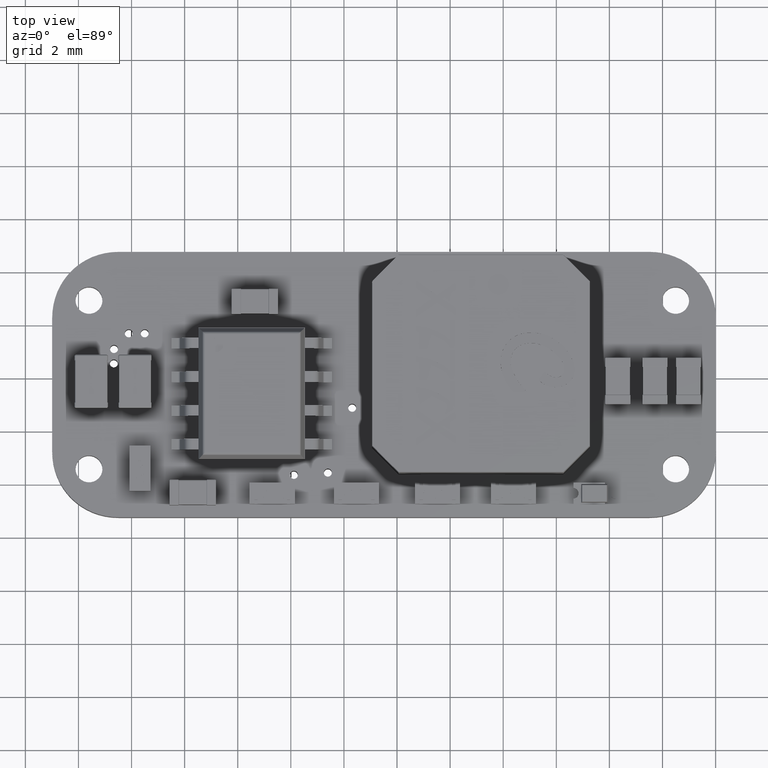
[diagram: clean part render]
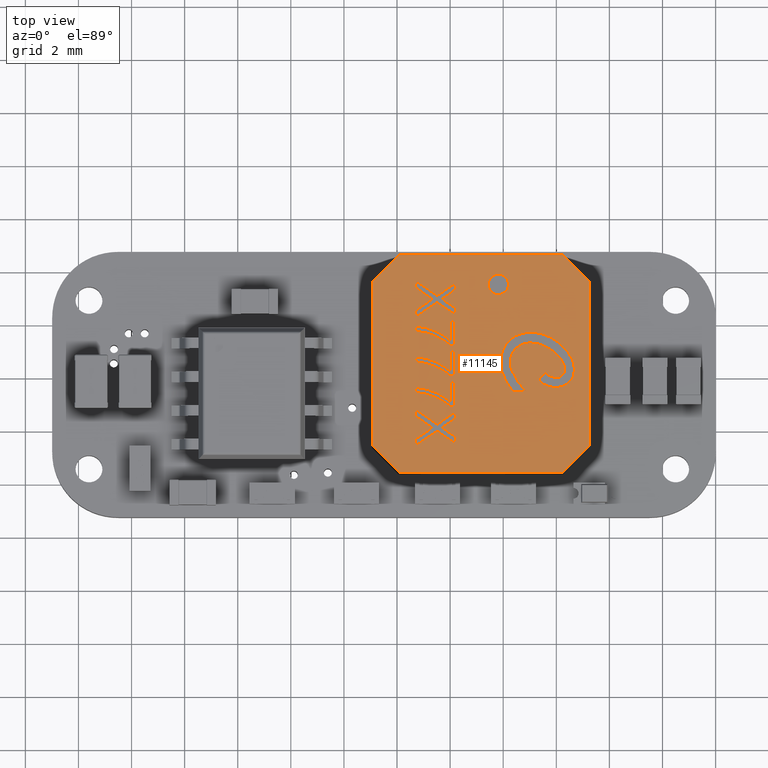
[diagram: same view with one face highlighted and labeled with its STEP entity id]
A machine part, top view. The second image highlights one B-rep face of the part: STEP entity #11145.
In plain terms, the highlighted planar face has unit normal (-0, -0, 1).
Its self-contained STEP definition (entity closure, byte-faithful):
#11086 = VERTEX_POINT('',#11087);
#11087 = CARTESIAN_POINT('',(-2.979623291829,4.2,-0.271458648783));
#11093 = EDGE_CURVE('',#11086,#11094,#11096,.T.);
#11094 = VERTEX_POINT('',#11095);
#11095 = CARTESIAN_POINT('',(-2.979623291829,4.2,-1.036926342344));
#11096 = CIRCLE('',#11097,0.38273384678);
#11097 = AXIS2_PLACEMENT_3D('',#11098,#11099,#11100);
#11098 = CARTESIAN_POINT('',(-2.979623291829,4.2,-0.654192495564));
#11099 = DIRECTION('',(0.,-1.,0.));
#11100 = DIRECTION('',(0.,0.,1.));
#11145 = ADVANCED_FACE('',(#11146,#11294,#11396,#11544,#11610,#11712,
    #11814,#11913),#11923,.T.);
#11146 = FACE_BOUND('',#11147,.T.);
#11147 = EDGE_LOOP('',(#11148,#11160,#11172,#11180,#11188,#11196,#11204,
    #11212,#11220,#11236,#11248,#11256,#11264,#11272,#11280,#11288));
#11148 = ORIENTED_EDGE('',*,*,#11149,.T.);
#11149 = EDGE_CURVE('',#11150,#11152,#11154,.T.);
#11150 = VERTEX_POINT('',#11151);
#11151 = CARTESIAN_POINT('',(2.478166246628,4.1995,1.926400268075));
#11152 = VERTEX_POINT('',#11153);
#11153 = CARTESIAN_POINT('',(2.416567688879,4.1995,1.837157479532));
#11154 = B_SPLINE_CURVE_WITH_KNOTS('',3,(#11155,#11156,#11157,#11158,
    #11159),.UNSPECIFIED.,.F.,.F.,(4,1,4),(0.,5.484579150193E-05,
    1.084376374258E-04),.UNSPECIFIED.);
#11155 = CARTESIAN_POINT('',(2.478166246628,4.1995,1.926400268075));
#11156 = CARTESIAN_POINT('',(2.467733450122,4.2,1.9113873623));
#11157 = CARTESIAN_POINT('',(2.447106383436,4.2,1.881704792687));
#11158 = CARTESIAN_POINT('',(2.426668474116,4.2,1.851891666752));
#11159 = CARTESIAN_POINT('',(2.416567688879,4.1995,1.837157479532));
#11160 = ORIENTED_EDGE('',*,*,#11161,.T.);
#11161 = EDGE_CURVE('',#11152,#11162,#11164,.T.);
#11162 = VERTEX_POINT('',#11163);
#11163 = CARTESIAN_POINT('',(2.34595470811,4.2,1.940222383378));
#11164 = B_SPLINE_CURVE_WITH_KNOTS('',3,(#11165,#11166,#11167,#11168,
    #11169,#11170,#11171),.UNSPECIFIED.,.F.,.F.,(4,1,1,1,4),(0.,
    4.084005399436E-05,7.518049018142E-05,1.030994004526E-04,
    1.249355307057E-04),.UNSPECIFIED.);
#11165 = CARTESIAN_POINT('',(2.416567688879,4.1995,1.837157479532));
#11166 = CARTESIAN_POINT('',(2.408876269647,4.2,1.848389772792));
#11167 = CARTESIAN_POINT('',(2.394717506093,4.2,1.869066760958));
#11168 = CARTESIAN_POINT('',(2.375009102457,4.2,1.897222338761));
#11169 = CARTESIAN_POINT('',(2.359456713117,4.2,1.920545575567));
#11170 = CARTESIAN_POINT('',(2.350072974885,4.2,1.934220730749));
#11171 = CARTESIAN_POINT('',(2.34595470811,4.2,1.940222383378));
#11172 = ORIENTED_EDGE('',*,*,#11173,.T.);
#11173 = EDGE_CURVE('',#11162,#11174,#11176,.T.);
#11174 = VERTEX_POINT('',#11175);
#11175 = CARTESIAN_POINT('',(1.991086919649,4.2,2.456448344917));
#11176 = LINE('',#11177,#11178);
#11177 = CARTESIAN_POINT('',(2.34595470811,4.2,1.940222383378));
#11178 = VECTOR('',#11179,1.);
#11179 = DIRECTION('',(-0.566488107656,0.,0.824069914439));
#11180 = ORIENTED_EDGE('',*,*,#11181,.T.);
#11181 = EDGE_CURVE('',#11174,#11182,#11184,.T.);
#11182 = VERTEX_POINT('',#11183);
#11183 = CARTESIAN_POINT('',(1.732973938879,4.2,2.456448344917));
#11184 = LINE('',#11185,#11186);
#11185 = CARTESIAN_POINT('',(-1.734723475977E-15,4.2,2.456448344917));
#11186 = VECTOR('',#11187,1.);
#11187 = DIRECTION('',(-1.,-0.,0.));
#11188 = ORIENTED_EDGE('',*,*,#11189,.T.);
#11189 = EDGE_CURVE('',#11182,#11190,#11192,.T.);
#11190 = VERTEX_POINT('',#11191);
#11191 = CARTESIAN_POINT('',(2.28736095811,4.2,1.649356998763));
#11192 = LINE('',#11193,#11194);
#11193 = CARTESIAN_POINT('',(1.732973938879,4.2,2.456448344917));
#11194 = VECTOR('',#11195,1.);
#11195 = DIRECTION('',(0.56619015091,0.,-0.824274658723));
#11196 = ORIENTED_EDGE('',*,*,#11197,.T.);
#11197 = EDGE_CURVE('',#11190,#11198,#11200,.T.);
#11198 = VERTEX_POINT('',#11199);
#11199 = CARTESIAN_POINT('',(1.809897015802,4.2,0.956448344917));
#11200 = LINE('',#11201,#11202);
#11201 = CARTESIAN_POINT('',(2.28736095811,4.2,1.649356998763));
#11202 = VECTOR('',#11203,1.);
#11203 = DIRECTION('',(-0.567407478148,0.,-0.823437158344));
#11204 = ORIENTED_EDGE('',*,*,#11205,.T.);
#11205 = EDGE_CURVE('',#11198,#11206,#11208,.T.);
#11206 = VERTEX_POINT('',#11207);
#11207 = CARTESIAN_POINT('',(2.06470470811,4.2,0.956448344917));
#11208 = LINE('',#11209,#11210);
#11209 = CARTESIAN_POINT('',(-1.734723475977E-15,4.2,0.956448344917));
#11210 = VECTOR('',#11211,1.);
#11211 = DIRECTION('',(1.,0.,-0.));
#11212 = ORIENTED_EDGE('',*,*,#11213,.T.);
#11213 = EDGE_CURVE('',#11206,#11214,#11216,.T.);
#11214 = VERTEX_POINT('',#11215);
#11215 = CARTESIAN_POINT('',(2.32642345811,4.1995,1.336256037224));
#11216 = LINE('',#11217,#11218);
#11217 = CARTESIAN_POINT('',(2.06470470811,4.2,0.956448344917));
#11218 = VECTOR('',#11219,1.);
#11219 = DIRECTION('',(0.567413224644,0.,0.823433198565));
#11220 = ORIENTED_EDGE('',*,*,#11221,.T.);
#11221 = EDGE_CURVE('',#11214,#11222,#11224,.T.);
#11222 = VERTEX_POINT('',#11223);
#11223 = CARTESIAN_POINT('',(2.404247977341,4.1995,1.479284883378));
#11224 = B_SPLINE_CURVE_WITH_KNOTS('',3,(#11225,#11226,#11227,#11228,
    #11229,#11230,#11231,#11232,#11233,#11234,#11235),.UNSPECIFIED.,.F.,
  .F.,(4,1,1,1,1,1,1,1,4),(0.,3.441910665247E-05,6.45885942174E-05,
    9.102574573047E-05,1.132389499535E-04,1.317837268376E-04,
    1.461848585974E-04,1.570438056302E-04,1.64261592151E-04),
  .UNSPECIFIED.);
#11225 = CARTESIAN_POINT('',(2.32642345811,4.1995,1.336256037224));
#11226 = CARTESIAN_POINT('',(2.332849271901,4.2,1.345760340518));
#11227 = CARTESIAN_POINT('',(2.34490752442,4.2,1.363595480602));
#11228 = CARTESIAN_POINT('',(2.361669792465,4.2,1.388893425667));
#11229 = CARTESIAN_POINT('',(2.375319525108,4.2,1.411345052082));
#11230 = CARTESIAN_POINT('',(2.386730557086,4.2,1.430625355455));
#11231 = CARTESIAN_POINT('',(2.395036246283,4.2,1.447048960199));
#11232 = CARTESIAN_POINT('',(2.401102872172,4.2,1.460312719408));
#11233 = CARTESIAN_POINT('',(2.404215230229,4.2,1.47082419266));
#11234 = CARTESIAN_POINT('',(2.404238632959,4.2,1.476870626881));
#11235 = CARTESIAN_POINT('',(2.404247977341,4.1995,1.479284883378));
#11236 = ORIENTED_EDGE('',*,*,#11237,.T.);
#11237 = EDGE_CURVE('',#11222,#11238,#11240,.T.);
#11238 = VERTEX_POINT('',#11239);
#11239 = CARTESIAN_POINT('',(2.502204707977,4.2,1.336556518187));
#11240 = B_SPLINE_CURVE_WITH_KNOTS('',3,(#11241,#11242,#11243,#11244,
    #11245,#11246,#11247),.UNSPECIFIED.,.F.,.F.,(4,1,1,1,4),(0.,
    3.39224058285E-05,7.434461255419E-05,1.20601091721E-04,
    1.731096277606E-04),.UNSPECIFIED.);
#11241 = CARTESIAN_POINT('',(2.404247977341,4.1995,1.479284883378));
#11242 = CARTESIAN_POINT('',(2.410663555783,4.2,1.469973632539));
#11243 = CARTESIAN_POINT('',(2.424723988172,4.2,1.449567021654));
#11244 = CARTESIAN_POINT('',(2.447408280205,4.2,1.416378231792));
#11245 = CARTESIAN_POINT('',(2.47362094842,4.2,1.378096885939));
#11246 = CARTESIAN_POINT('',(2.49228300426,4.2,1.35097558788));
#11247 = CARTESIAN_POINT('',(2.502204707977,4.2,1.336556518187));
#11248 = ORIENTED_EDGE('',*,*,#11249,.T.);
#11249 = EDGE_CURVE('',#11238,#11250,#11252,.T.);
#11250 = VERTEX_POINT('',#11251);
#11251 = CARTESIAN_POINT('',(2.763022015802,4.2,0.956448344917));
#11252 = LINE('',#11253,#11254);
#11253 = CARTESIAN_POINT('',(2.50220470811,4.2,1.336556517994));
#11254 = VECTOR('',#11255,1.);
#11255 = DIRECTION('',(0.565781674535,0.,-0.824555090192));
#11256 = ORIENTED_EDGE('',*,*,#11257,.T.);
#11257 = EDGE_CURVE('',#11250,#11258,#11260,.T.);
#11258 = VERTEX_POINT('',#11259);
#11259 = CARTESIAN_POINT('',(3.021435477341,4.2,0.956448344917));
#11260 = LINE('',#11261,#11262);
#11261 = CARTESIAN_POINT('',(-1.734723475977E-15,4.2,0.956448344917));
#11262 = VECTOR('',#11263,1.);
#11263 = DIRECTION('',(1.,0.,-0.));
#11264 = ORIENTED_EDGE('',*,*,#11265,.T.);
#11265 = EDGE_CURVE('',#11258,#11266,#11268,.T.);
#11266 = VERTEX_POINT('',#11267);
#11267 = CARTESIAN_POINT('',(2.543971535033,4.2,1.651760844917));
#11268 = LINE('',#11269,#11270);
#11269 = CARTESIAN_POINT('',(3.021435477341,4.2,0.956448344917));
#11270 = VECTOR('',#11271,1.);
#11271 = DIRECTION('',(-0.566075161043,0.,0.824353632885));
#11272 = ORIENTED_EDGE('',*,*,#11273,.T.);
#11273 = EDGE_CURVE('',#11266,#11274,#11276,.T.);
#11274 = VERTEX_POINT('',#11275);
#11275 = CARTESIAN_POINT('',(3.098358554264,4.2,2.456448344917));
#11276 = LINE('',#11277,#11278);
#11277 = CARTESIAN_POINT('',(2.543971535033,4.2,1.651760844917));
#11278 = VECTOR('',#11279,1.);
#11279 = DIRECTION('',(0.567337674703,0.,0.823485253579));
#11280 = ORIENTED_EDGE('',*,*,#11281,.T.);
#11281 = EDGE_CURVE('',#11274,#11282,#11284,.T.);
#11282 = VERTEX_POINT('',#11283);
#11283 = CARTESIAN_POINT('',(2.843250381187,4.2,2.456448344917));
#11284 = LINE('',#11285,#11286);
#11285 = CARTESIAN_POINT('',(-1.734723475977E-15,4.2,2.456448344917));
#11286 = VECTOR('',#11287,1.);
#11287 = DIRECTION('',(-1.,-0.,0.));
#11288 = ORIENTED_EDGE('',*,*,#11289,.T.);
#11289 = EDGE_CURVE('',#11282,#11150,#11290,.T.);
#11290 = LINE('',#11291,#11292);
#11291 = CARTESIAN_POINT('',(2.843250381187,4.2,2.456448344917));
#11292 = VECTOR('',#11293,1.);
#11293 = DIRECTION('',(-0.567241912191,0.,-0.823551220662));
#11294 = FACE_BOUND('',#11295,.T.);
#11295 = EDGE_LOOP('',(#11296,#11310,#11318,#11346,#11354,#11362,#11370,
    #11378));
#11296 = ORIENTED_EDGE('',*,*,#11297,.T.);
#11297 = EDGE_CURVE('',#11298,#11300,#11302,.T.);
#11298 = VERTEX_POINT('',#11299);
#11299 = CARTESIAN_POINT('',(1.904227340827E-03,4.1995,2.04869594107));
#11300 = VERTEX_POINT('',#11301);
#11301 = CARTESIAN_POINT('',(-6.450202265917E-02,4.2,2.456448344917));
#11302 = B_SPLINE_CURVE_WITH_KNOTS('',3,(#11303,#11304,#11305,#11306,
    #11307,#11308,#11309),.UNSPECIFIED.,.F.,.F.,(4,1,1,1,4),(0.,
    9.819806945994E-05,1.997713399824E-04,3.050249036708E-04,
    4.139596603042E-04),.UNSPECIFIED.);
#11303 = CARTESIAN_POINT('',(1.904227340827E-03,4.1995,2.04869594107));
#11304 = CARTESIAN_POINT('',(-6.393250898649E-03,4.2,2.080358390155));
#11305 = CARTESIAN_POINT('',(-2.327340297792E-02,4.2,2.144771569717));
#11306 = CARTESIAN_POINT('',(-4.175197050215E-02,4.2,2.244797080851));
#11307 = CARTESIAN_POINT('',(-5.603864314308E-02,4.2,2.349088742394));
#11308 = CARTESIAN_POINT('',(-6.164875635405E-02,4.2,2.42025411118));
#11309 = CARTESIAN_POINT('',(-6.450202265917E-02,4.2,2.456448344917));
#11310 = ORIENTED_EDGE('',*,*,#11311,.T.);
#11311 = EDGE_CURVE('',#11300,#11312,#11314,.T.);
#11312 = VERTEX_POINT('',#11313);
#11313 = CARTESIAN_POINT('',(-0.256809714967,4.2,2.456448344917));
#11314 = LINE('',#11315,#11316);
#11315 = CARTESIAN_POINT('',(-1.734723475977E-15,4.2,2.456448344917));
#11316 = VECTOR('',#11317,1.);
#11317 = DIRECTION('',(-1.,-0.,0.));
#11318 = ORIENTED_EDGE('',*,*,#11319,.T.);
#11319 = EDGE_CURVE('',#11312,#11320,#11322,.T.);
#11320 = VERTEX_POINT('',#11321);
#11321 = CARTESIAN_POINT('',(0.281651823495,4.2,1.167986806455));
#11322 = B_SPLINE_CURVE_WITH_KNOTS('',3,(#11323,#11324,#11325,#11326,
    #11327,#11328,#11329,#11330,#11331,#11332,#11333,#11334,#11335,
    #11336,#11337,#11338,#11339,#11340,#11341,#11342,#11343,#11344,
    #11345),.UNSPECIFIED.,.F.,.F.,(4,1,1,1,1,1,1,1,1,1,1,1,1,1,1,1,1,1,1
    ,1,4),(0.,4.481180081751E-05,9.215282932953E-05,1.420641044009E-04,
    1.943384687724E-04,2.490356589312E-04,3.067955355249E-04,
    3.670724349604E-04,4.298294501282E-04,5.584368801054E-04,
    6.872004482228E-04,8.16753734428E-04,9.473950680714E-04,
    1.012399765881E-03,1.075480430175E-03,1.137249015593E-03,
    1.197176580952E-03,1.255305812831E-03,1.31228811413E-03,
    1.367811166826E-03,1.421890702569E-03),.UNSPECIFIED.);
#11323 = CARTESIAN_POINT('',(-0.256809714967,4.2,2.456448344917));
#11324 = CARTESIAN_POINT('',(-0.256348453591,4.2,2.44151660466));
#11325 = CARTESIAN_POINT('',(-0.255399896737,4.2,2.41081036018));
#11326 = CARTESIAN_POINT('',(-0.251205300519,4.2,2.363626947411));
#11327 = CARTESIAN_POINT('',(-0.245618482528,4.2,2.314098883182));
#11328 = CARTESIAN_POINT('',(-0.23772757616,4.2,2.262393484662));
#11329 = CARTESIAN_POINT('',(-0.227697585692,4.2,2.208405795006));
#11330 = CARTESIAN_POINT('',(-0.215745539619,4.2,2.152078630357));
#11331 = CARTESIAN_POINT('',(-0.20147129984,4.2,2.093528487414));
#11332 = CARTESIAN_POINT('',(-0.180360513302,4.2,2.012352555022));
#11333 = CARTESIAN_POINT('',(-0.149007563493,4.2,1.910280518518));
#11334 = CARTESIAN_POINT('',(-0.103359939022,4.2,1.789589695917));
#11335 = CARTESIAN_POINT('',(-5.086393686686E-02,4.2,1.670969930703));
#11336 = CARTESIAN_POINT('',(-7.605717097116E-04,4.2,1.574775585321));
#11337 = CARTESIAN_POINT('',(4.196534057682E-02,4.2,1.499867105529));
#11338 = CARTESIAN_POINT('',(7.438838539811E-02,4.2,1.445515226655));
#11339 = CARTESIAN_POINT('',(0.107733434627,4.2,1.393723905122));
#11340 = CARTESIAN_POINT('',(0.14138229969,4.2,1.344120568303));
#11341 = CARTESIAN_POINT('',(0.175340812588,4.2,1.296663443012));
#11342 = CARTESIAN_POINT('',(0.210300725096,4.2,1.251796125266));
#11343 = CARTESIAN_POINT('',(0.245231298842,4.2,1.20861723481));
#11344 = CARTESIAN_POINT('',(0.269618713132,4.2,1.181410842302));
#11345 = CARTESIAN_POINT('',(0.281651823495,4.2,1.167986806455));
#11346 = ORIENTED_EDGE('',*,*,#11347,.T.);
#11347 = EDGE_CURVE('',#11320,#11348,#11350,.T.);
#11348 = VERTEX_POINT('',#11349);
#11349 = CARTESIAN_POINT('',(-0.487578945736,4.2,1.167986806455));
#11350 = LINE('',#11351,#11352);
#11351 = CARTESIAN_POINT('',(-1.734723475977E-15,4.2,1.167986806455));
#11352 = VECTOR('',#11353,1.);
#11353 = DIRECTION('',(-1.,-0.,0.));
#11354 = ORIENTED_EDGE('',*,*,#11355,.T.);
#11355 = EDGE_CURVE('',#11348,#11356,#11358,.T.);
#11356 = VERTEX_POINT('',#11357);
#11357 = CARTESIAN_POINT('',(-0.487578945736,4.2,0.975679114147));
#11358 = LINE('',#11359,#11360);
#11359 = CARTESIAN_POINT('',(-0.487578945736,4.2,-7.191857864376));
#11360 = VECTOR('',#11361,1.);
#11361 = DIRECTION('',(-0.,0.,-1.));
#11362 = ORIENTED_EDGE('',*,*,#11363,.T.);
#11363 = EDGE_CURVE('',#11356,#11364,#11366,.T.);
#11364 = VERTEX_POINT('',#11365);
#11365 = CARTESIAN_POINT('',(0.473959515802,4.2,0.975679114147));
#11366 = LINE('',#11367,#11368);
#11367 = CARTESIAN_POINT('',(-1.734723475977E-15,4.2,0.975679114147));
#11368 = VECTOR('',#11369,1.);
#11369 = DIRECTION('',(1.,0.,-0.));
#11370 = ORIENTED_EDGE('',*,*,#11371,.T.);
#11371 = EDGE_CURVE('',#11364,#11372,#11374,.T.);
#11372 = VERTEX_POINT('',#11373);
#11373 = CARTESIAN_POINT('',(0.473959515802,4.1995,1.131328152609));
#11374 = LINE('',#11375,#11376);
#11375 = CARTESIAN_POINT('',(0.473959515802,4.2,-7.191857864376));
#11376 = VECTOR('',#11377,1.);
#11377 = DIRECTION('',(0.,-0.,1.));
#11378 = ORIENTED_EDGE('',*,*,#11379,.T.);
#11379 = EDGE_CURVE('',#11372,#11298,#11380,.T.);
#11380 = B_SPLINE_CURVE_WITH_KNOTS('',3,(#11381,#11382,#11383,#11384,
    #11385,#11386,#11387,#11388,#11389,#11390,#11391,#11392,#11393,
    #11394,#11395),.UNSPECIFIED.,.F.,.F.,(4,1,1,1,1,1,1,1,1,1,1,1,4),(0.
    ,5.23323214587E-05,1.070012147174E-04,1.640697788659E-04,
    2.234235544069E-04,2.852882293089E-04,3.497065685723E-04,
    4.167164482106E-04,4.862076218158E-04,6.267300584672E-04,
    7.658794860807E-04,9.037585580246E-04,1.040952986464E-03),
  .UNSPECIFIED.);
#11381 = CARTESIAN_POINT('',(0.473959515802,4.1995,1.131328152609));
#11382 = CARTESIAN_POINT('',(0.462639698715,4.2,1.144565732107));
#11383 = CARTESIAN_POINT('',(0.439494649061,4.2,1.171631932242));
#11384 = CARTESIAN_POINT('',(0.405964318282,4.2,1.214744043117));
#11385 = CARTESIAN_POINT('',(0.372259757299,4.2,1.260643729863));
#11386 = CARTESIAN_POINT('',(0.338973393598,4.2,1.309772364312));
#11387 = CARTESIAN_POINT('',(0.305607862545,4.2,1.361771406757));
#11388 = CARTESIAN_POINT('',(0.272297448816,4.2,1.416806930568));
#11389 = CARTESIAN_POINT('',(0.238906167659,4.2,1.474744886986));
#11390 = CARTESIAN_POINT('',(0.195106802913,4.2,1.555869318367));
#11391 = CARTESIAN_POINT('',(0.142851901354,4.2,1.659729042989));
#11392 = CARTESIAN_POINT('',(8.85540973609E-02,4.2,1.787702914174));
#11393 = CARTESIAN_POINT('',(4.035019655481E-02,4.2,1.916952312715));
#11394 = CARTESIAN_POINT('',(1.469826831116E-02,4.2,2.004854326118));
#11395 = CARTESIAN_POINT('',(1.904227340827E-03,4.1995,2.04869594107));
#11396 = FACE_BOUND('',#11397,.T.);
#11397 = EDGE_LOOP('',(#11398,#11410,#11422,#11430,#11438,#11446,#11454,
    #11462,#11470,#11486,#11498,#11506,#11514,#11522,#11530,#11538));
#11398 = ORIENTED_EDGE('',*,*,#11399,.T.);
#11399 = EDGE_CURVE('',#11400,#11402,#11404,.T.);
#11400 = VERTEX_POINT('',#11401);
#11401 = CARTESIAN_POINT('',(-2.367987599566,4.199499999999,
    1.926400268017));
#11402 = VERTEX_POINT('',#11403);
#11403 = CARTESIAN_POINT('',(-2.429586157275,4.199499999999,
    1.837157479532));
#11404 = B_SPLINE_CURVE_WITH_KNOTS('',3,(#11405,#11406,#11407,#11408,
    #11409),.UNSPECIFIED.,.F.,.F.,(4,1,4),(0.,5.484579146604E-05,
    1.084376373549E-04),.UNSPECIFIED.);
#11405 = CARTESIAN_POINT('',(-2.367987599566,4.199499999999,
    1.926400268017));
#11406 = CARTESIAN_POINT('',(-2.378420396032,4.2,1.9113873623));
#11407 = CARTESIAN_POINT('',(-2.399047462718,4.2,1.881704792687));
#11408 = CARTESIAN_POINT('',(-2.419485372037,4.2,1.851891666752));
#11409 = CARTESIAN_POINT('',(-2.429586157275,4.199499999999,
    1.837157479532));
#11410 = ORIENTED_EDGE('',*,*,#11411,.T.);
#11411 = EDGE_CURVE('',#11402,#11412,#11414,.T.);
#11412 = VERTEX_POINT('',#11413);
#11413 = CARTESIAN_POINT('',(-2.500199138044,4.2,1.940222383378));
#11414 = B_SPLINE_CURVE_WITH_KNOTS('',3,(#11415,#11416,#11417,#11418,
    #11419,#11420,#11421),.UNSPECIFIED.,.F.,.F.,(4,1,1,1,4),(0.,
    4.084005399436E-05,7.518049018142E-05,1.030994004526E-04,
    1.249355307057E-04),.UNSPECIFIED.);
#11415 = CARTESIAN_POINT('',(-2.429586157275,4.199499999999,
    1.837157479532));
#11416 = CARTESIAN_POINT('',(-2.437277576507,4.2,1.848389772792));
#11417 = CARTESIAN_POINT('',(-2.451436340061,4.2,1.869066760958));
#11418 = CARTESIAN_POINT('',(-2.471144743697,4.2,1.897222338761));
#11419 = CARTESIAN_POINT('',(-2.486697133036,4.2,1.920545575567));
#11420 = CARTESIAN_POINT('',(-2.496080871268,4.2,1.934220730749));
#11421 = CARTESIAN_POINT('',(-2.500199138044,4.2,1.940222383378));
#11422 = ORIENTED_EDGE('',*,*,#11423,.T.);
#11423 = EDGE_CURVE('',#11412,#11424,#11426,.T.);
#11424 = VERTEX_POINT('',#11425);
#11425 = CARTESIAN_POINT('',(-2.855066926505,4.2,2.456448344917));
#11426 = LINE('',#11427,#11428);
#11427 = CARTESIAN_POINT('',(-2.500199138044,4.2,1.940222383378));
#11428 = VECTOR('',#11429,1.);
#11429 = DIRECTION('',(-0.566488107656,0.,0.824069914439));
#11430 = ORIENTED_EDGE('',*,*,#11431,.T.);
#11431 = EDGE_CURVE('',#11424,#11432,#11434,.T.);
#11432 = VERTEX_POINT('',#11433);
#11433 = CARTESIAN_POINT('',(-3.113179907275,4.2,2.456448344917));
#11434 = LINE('',#11435,#11436);
#11435 = CARTESIAN_POINT('',(-1.734723475977E-15,4.2,2.456448344917));
#11436 = VECTOR('',#11437,1.);
#11437 = DIRECTION('',(-1.,-0.,0.));
#11438 = ORIENTED_EDGE('',*,*,#11439,.T.);
#11439 = EDGE_CURVE('',#11432,#11440,#11442,.T.);
#11440 = VERTEX_POINT('',#11441);
#11441 = CARTESIAN_POINT('',(-2.558792888044,4.2,1.649356998763));
#11442 = LINE('',#11443,#11444);
#11443 = CARTESIAN_POINT('',(-3.113179907275,4.2,2.456448344917));
#11444 = VECTOR('',#11445,1.);
#11445 = DIRECTION('',(0.56619015091,0.,-0.824274658723));
#11446 = ORIENTED_EDGE('',*,*,#11447,.T.);
#11447 = EDGE_CURVE('',#11440,#11448,#11450,.T.);
#11448 = VERTEX_POINT('',#11449);
#11449 = CARTESIAN_POINT('',(-3.036256830351,4.2,0.956448344917));
#11450 = LINE('',#11451,#11452);
#11451 = CARTESIAN_POINT('',(-2.558792888044,4.2,1.649356998763));
#11452 = VECTOR('',#11453,1.);
#11453 = DIRECTION('',(-0.567407478148,0.,-0.823437158344));
#11454 = ORIENTED_EDGE('',*,*,#11455,.T.);
#11455 = EDGE_CURVE('',#11448,#11456,#11458,.T.);
#11456 = VERTEX_POINT('',#11457);
#11457 = CARTESIAN_POINT('',(-2.781449138044,4.2,0.956448344917));
#11458 = LINE('',#11459,#11460);
#11459 = CARTESIAN_POINT('',(-1.734723475977E-15,4.2,0.956448344917));
#11460 = VECTOR('',#11461,1.);
#11461 = DIRECTION('',(1.,0.,-0.));
#11462 = ORIENTED_EDGE('',*,*,#11463,.T.);
#11463 = EDGE_CURVE('',#11456,#11464,#11466,.T.);
#11464 = VERTEX_POINT('',#11465);
#11465 = CARTESIAN_POINT('',(-2.519730388044,4.1995,1.336256037224));
#11466 = LINE('',#11467,#11468);
#11467 = CARTESIAN_POINT('',(-2.781449138044,4.2,0.956448344917));
#11468 = VECTOR('',#11469,1.);
#11469 = DIRECTION('',(0.567413224644,0.,0.823433198565));
#11470 = ORIENTED_EDGE('',*,*,#11471,.T.);
#11471 = EDGE_CURVE('',#11464,#11472,#11474,.T.);
#11472 = VERTEX_POINT('',#11473);
#11473 = CARTESIAN_POINT('',(-2.441905868813,4.1995,1.479284883378));
#11474 = B_SPLINE_CURVE_WITH_KNOTS('',3,(#11475,#11476,#11477,#11478,
    #11479,#11480,#11481,#11482,#11483,#11484,#11485),.UNSPECIFIED.,.F.,
  .F.,(4,1,1,1,1,1,1,1,4),(0.,3.441045518563E-05,6.457235945317E-05,
    9.100286581586E-05,1.132104866052E-04,1.317506021388E-04,
    1.461481140802E-04,1.570043316458E-04,1.642203039289E-04),
  .UNSPECIFIED.);
#11475 = CARTESIAN_POINT('',(-2.519730388044,4.1995,1.336256037224));
#11476 = CARTESIAN_POINT('',(-2.513304574253,4.2,1.345760340518));
#11477 = CARTESIAN_POINT('',(-2.501246321734,4.2,1.363595480602));
#11478 = CARTESIAN_POINT('',(-2.484484053689,4.2,1.388893425667));
#11479 = CARTESIAN_POINT('',(-2.470834321045,4.2,1.411345052082));
#11480 = CARTESIAN_POINT('',(-2.459423289068,4.2,1.430625355455));
#11481 = CARTESIAN_POINT('',(-2.45111759987,4.2,1.447048960199));
#11482 = CARTESIAN_POINT('',(-2.445050973982,4.2,1.460312719408));
#11483 = CARTESIAN_POINT('',(-2.441938615925,4.2,1.47082419266));
#11484 = CARTESIAN_POINT('',(-2.441915213195,4.2,1.476870626881));
#11485 = CARTESIAN_POINT('',(-2.441905868813,4.1995,1.479284883378));
#11486 = ORIENTED_EDGE('',*,*,#11487,.T.);
#11487 = EDGE_CURVE('',#11472,#11488,#11490,.T.);
#11488 = VERTEX_POINT('',#11489);
#11489 = CARTESIAN_POINT('',(-2.343949138179,4.2,1.33655651819));
#11490 = B_SPLINE_CURVE_WITH_KNOTS('',3,(#11491,#11492,#11493,#11494,
    #11495,#11496,#11497),.UNSPECIFIED.,.F.,.F.,(4,1,1,1,4),(0.,
    3.392240582778E-05,7.434461255261E-05,1.206010917184E-04,
    1.731096277569E-04),.UNSPECIFIED.);
#11491 = CARTESIAN_POINT('',(-2.441905868813,4.1995,1.479284883378));
#11492 = CARTESIAN_POINT('',(-2.435490290371,4.2,1.469973632539));
#11493 = CARTESIAN_POINT('',(-2.421429857982,4.2,1.449567021654));
#11494 = CARTESIAN_POINT('',(-2.398745565948,4.2,1.416378231792));
#11495 = CARTESIAN_POINT('',(-2.372532897734,4.2,1.378096885939));
#11496 = CARTESIAN_POINT('',(-2.353870841894,4.2,1.35097558788));
#11497 = CARTESIAN_POINT('',(-2.343949138179,4.2,1.33655651819));
#11498 = ORIENTED_EDGE('',*,*,#11499,.T.);
#11499 = EDGE_CURVE('',#11488,#11500,#11502,.T.);
#11500 = VERTEX_POINT('',#11501);
#11501 = CARTESIAN_POINT('',(-2.083131830351,4.2,0.956448344917));
#11502 = LINE('',#11503,#11504);
#11503 = CARTESIAN_POINT('',(-2.343949138044,4.2,1.336556517994));
#11504 = VECTOR('',#11505,1.);
#11505 = DIRECTION('',(0.565781674535,0.,-0.824555090192));
#11506 = ORIENTED_EDGE('',*,*,#11507,.T.);
#11507 = EDGE_CURVE('',#11500,#11508,#11510,.T.);
#11508 = VERTEX_POINT('',#11509);
#11509 = CARTESIAN_POINT('',(-1.824718368813,4.2,0.956448344917));
#11510 = LINE('',#11511,#11512);
#11511 = CARTESIAN_POINT('',(-1.734723475977E-15,4.2,0.956448344917));
#11512 = VECTOR('',#11513,1.);
#11513 = DIRECTION('',(1.,0.,-0.));
#11514 = ORIENTED_EDGE('',*,*,#11515,.T.);
#11515 = EDGE_CURVE('',#11508,#11516,#11518,.T.);
#11516 = VERTEX_POINT('',#11517);
#11517 = CARTESIAN_POINT('',(-2.302182311121,4.2,1.651760844917));
#11518 = LINE('',#11519,#11520);
#11519 = CARTESIAN_POINT('',(-1.824718368813,4.2,0.956448344917));
#11520 = VECTOR('',#11521,1.);
#11521 = DIRECTION('',(-0.566075161043,0.,0.824353632885));
#11522 = ORIENTED_EDGE('',*,*,#11523,.T.);
#11523 = EDGE_CURVE('',#11516,#11524,#11526,.T.);
#11524 = VERTEX_POINT('',#11525);
#11525 = CARTESIAN_POINT('',(-1.74779529189,4.2,2.456448344917));
#11526 = LINE('',#11527,#11528);
#11527 = CARTESIAN_POINT('',(-2.302182311121,4.2,1.651760844917));
#11528 = VECTOR('',#11529,1.);
#11529 = DIRECTION('',(0.567337674703,0.,0.823485253579));
#11530 = ORIENTED_EDGE('',*,*,#11531,.T.);
#11531 = EDGE_CURVE('',#11524,#11532,#11534,.T.);
#11532 = VERTEX_POINT('',#11533);
#11533 = CARTESIAN_POINT('',(-2.002903464967,4.2,2.456448344917));
#11534 = LINE('',#11535,#11536);
#11535 = CARTESIAN_POINT('',(-1.734723475977E-15,4.2,2.456448344917));
#11536 = VECTOR('',#11537,1.);
#11537 = DIRECTION('',(-1.,-0.,0.));
#11538 = ORIENTED_EDGE('',*,*,#11539,.T.);
#11539 = EDGE_CURVE('',#11532,#11400,#11540,.T.);
#11540 = LINE('',#11541,#11542);
#11541 = CARTESIAN_POINT('',(-2.002903464967,4.2,2.456448344917));
#11542 = VECTOR('',#11543,1.);
#11543 = DIRECTION('',(-0.567241912191,0.,-0.823551220662));
#11544 = FACE_BOUND('',#11545,.T.);
#11545 = EDGE_LOOP('',(#11546,#11556,#11564,#11572,#11580,#11588,#11596,
    #11604));
#11546 = ORIENTED_EDGE('',*,*,#11547,.T.);
#11547 = EDGE_CURVE('',#11548,#11550,#11552,.T.);
#11548 = VERTEX_POINT('',#11549);
#11549 = CARTESIAN_POINT('',(3.098857864376,4.2,4.093));
#11550 = VERTEX_POINT('',#11551);
#11551 = CARTESIAN_POINT('',(4.093,4.2,3.098857864376));
#11552 = LINE('',#11553,#11554);
#11553 = CARTESIAN_POINT('',(3.098857864376,4.2,4.093));
#11554 = VECTOR('',#11555,1.);
#11555 = DIRECTION('',(0.707106781187,0.,-0.707106781187));
#11556 = ORIENTED_EDGE('',*,*,#11557,.T.);
#11557 = EDGE_CURVE('',#11550,#11558,#11560,.T.);
#11558 = VERTEX_POINT('',#11559);
#11559 = CARTESIAN_POINT('',(4.093,4.2,-3.098857864376));
#11560 = LINE('',#11561,#11562);
#11561 = CARTESIAN_POINT('',(4.093,4.2,-7.191857864376));
#11562 = VECTOR('',#11563,1.);
#11563 = DIRECTION('',(-0.,0.,-1.));
#11564 = ORIENTED_EDGE('',*,*,#11565,.T.);
#11565 = EDGE_CURVE('',#11558,#11566,#11568,.T.);
#11566 = VERTEX_POINT('',#11567);
#11567 = CARTESIAN_POINT('',(3.098857864376,4.2,-4.093));
#11568 = LINE('',#11569,#11570);
#11569 = CARTESIAN_POINT('',(4.093,4.2,-3.098857864376));
#11570 = VECTOR('',#11571,1.);
#11571 = DIRECTION('',(-0.707106781187,0.,-0.707106781187));
#11572 = ORIENTED_EDGE('',*,*,#11573,.T.);
#11573 = EDGE_CURVE('',#11566,#11574,#11576,.T.);
#11574 = VERTEX_POINT('',#11575);
#11575 = CARTESIAN_POINT('',(-3.098857864376,4.2,-4.093));
#11576 = LINE('',#11577,#11578);
#11577 = CARTESIAN_POINT('',(-1.734723475977E-15,4.2,-4.093));
#11578 = VECTOR('',#11579,1.);
#11579 = DIRECTION('',(-1.,-0.,0.));
#11580 = ORIENTED_EDGE('',*,*,#11581,.T.);
#11581 = EDGE_CURVE('',#11574,#11582,#11584,.T.);
#11582 = VERTEX_POINT('',#11583);
#11583 = CARTESIAN_POINT('',(-4.093,4.2,-3.098857864376));
#11584 = LINE('',#11585,#11586);
#11585 = CARTESIAN_POINT('',(-3.098857864376,4.2,-4.093));
#11586 = VECTOR('',#11587,1.);
#11587 = DIRECTION('',(-0.707106781187,0.,0.707106781187));
#11588 = ORIENTED_EDGE('',*,*,#11589,.T.);
#11589 = EDGE_CURVE('',#11582,#11590,#11592,.T.);
#11590 = VERTEX_POINT('',#11591);
#11591 = CARTESIAN_POINT('',(-4.093,4.2,3.098857864376));
#11592 = LINE('',#11593,#11594);
#11593 = CARTESIAN_POINT('',(-4.093,4.2,-7.191857864376));
#11594 = VECTOR('',#11595,1.);
#11595 = DIRECTION('',(0.,-0.,1.));
#11596 = ORIENTED_EDGE('',*,*,#11597,.T.);
#11597 = EDGE_CURVE('',#11590,#11598,#11600,.T.);
#11598 = VERTEX_POINT('',#11599);
#11599 = CARTESIAN_POINT('',(-3.098857864376,4.2,4.093));
#11600 = LINE('',#11601,#11602);
#11601 = CARTESIAN_POINT('',(-4.093,4.2,3.098857864376));
#11602 = VECTOR('',#11603,1.);
#11603 = DIRECTION('',(0.707106781187,0.,0.707106781187));
#11604 = ORIENTED_EDGE('',*,*,#11605,.T.);
#11605 = EDGE_CURVE('',#11598,#11548,#11606,.T.);
#11606 = LINE('',#11607,#11608);
#11607 = CARTESIAN_POINT('',(-1.734723475977E-15,4.2,4.093));
#11608 = VECTOR('',#11609,1.);
#11609 = DIRECTION('',(1.,0.,-0.));
#11610 = FACE_BOUND('',#11611,.T.);
#11611 = EDGE_LOOP('',(#11612,#11626,#11634,#11662,#11670,#11678,#11686,
    #11694));
#11612 = ORIENTED_EDGE('',*,*,#11613,.T.);
#11613 = EDGE_CURVE('',#11614,#11616,#11618,.T.);
#11614 = VERTEX_POINT('',#11615);
#11615 = CARTESIAN_POINT('',(-1.151941926505,4.1995,2.04869594107));
#11616 = VERTEX_POINT('',#11617);
#11617 = CARTESIAN_POINT('',(-1.218348176505,4.2,2.456448344917));
#11618 = B_SPLINE_CURVE_WITH_KNOTS('',3,(#11619,#11620,#11621,#11622,
    #11623,#11624,#11625),.UNSPECIFIED.,.F.,.F.,(4,1,1,1,4),(0.,
    9.817620260288E-05,1.997268546747E-04,3.049569803806E-04,
    4.138674792993E-04),.UNSPECIFIED.);
#11619 = CARTESIAN_POINT('',(-1.151941926505,4.1995,2.04869594107));
#11620 = CARTESIAN_POINT('',(-1.160239404745,4.2,2.080358390155));
#11621 = CARTESIAN_POINT('',(-1.177119556824,4.2,2.144771569717));
#11622 = CARTESIAN_POINT('',(-1.195598124348,4.2,2.244797080851));
#11623 = CARTESIAN_POINT('',(-1.209884796989,4.2,2.349088742394));
#11624 = CARTESIAN_POINT('',(-1.2154949102,4.2,2.42025411118));
#11625 = CARTESIAN_POINT('',(-1.218348176505,4.2,2.456448344917));
#11626 = ORIENTED_EDGE('',*,*,#11627,.T.);
#11627 = EDGE_CURVE('',#11616,#11628,#11630,.T.);
#11628 = VERTEX_POINT('',#11629);
#11629 = CARTESIAN_POINT('',(-1.410655868813,4.2,2.456448344917));
#11630 = LINE('',#11631,#11632);
#11631 = CARTESIAN_POINT('',(-1.734723475977E-15,4.2,2.456448344917));
#11632 = VECTOR('',#11633,1.);
#11633 = DIRECTION('',(-1.,-0.,0.));
#11634 = ORIENTED_EDGE('',*,*,#11635,.T.);
#11635 = EDGE_CURVE('',#11628,#11636,#11638,.T.);
#11636 = VERTEX_POINT('',#11637);
#11637 = CARTESIAN_POINT('',(-0.872194330351,4.2,1.167986806455));
#11638 = B_SPLINE_CURVE_WITH_KNOTS('',3,(#11639,#11640,#11641,#11642,
    #11643,#11644,#11645,#11646,#11647,#11648,#11649,#11650,#11651,
    #11652,#11653,#11654,#11655,#11656,#11657,#11658,#11659,#11660,
    #11661),.UNSPECIFIED.,.F.,.F.,(4,1,1,1,1,1,1,1,1,1,1,1,1,1,1,1,1,1,1
    ,1,4),(0.,4.481122196375E-05,9.215163895085E-05,1.420622692963E-04,
    1.943359584169E-04,2.49032442028E-04,3.067915725119E-04,
    3.670676933241E-04,4.298238978319E-04,5.584296665303E-04,
    6.87191571352E-04,8.167431840604E-04,9.473828301522E-04,
    1.012386688268E-03,1.075466537721E-03,1.137234325246E-03,
    1.197161116495E-03,1.255289597493E-03,1.312271162726E-03,
    1.367793498207E-03,1.421872335381E-03),.UNSPECIFIED.);
#11639 = CARTESIAN_POINT('',(-1.410655868813,4.2,2.456448344917));
#11640 = CARTESIAN_POINT('',(-1.410194607438,4.2,2.44151660466));
#11641 = CARTESIAN_POINT('',(-1.409246050583,4.2,2.41081036018));
#11642 = CARTESIAN_POINT('',(-1.405051454365,4.2,2.363626947411));
#11643 = CARTESIAN_POINT('',(-1.399464636374,4.2,2.314098883182));
#11644 = CARTESIAN_POINT('',(-1.391573730006,4.2,2.262393484662));
#11645 = CARTESIAN_POINT('',(-1.381543739538,4.2,2.208405795006));
#11646 = CARTESIAN_POINT('',(-1.369591693465,4.2,2.152078630357));
#11647 = CARTESIAN_POINT('',(-1.355317453687,4.2,2.093528487414));
#11648 = CARTESIAN_POINT('',(-1.334206667149,4.2,2.012352555022));
#11649 = CARTESIAN_POINT('',(-1.302853717339,4.2,1.910280518518));
#11650 = CARTESIAN_POINT('',(-1.257206092868,4.2,1.789589695917));
#11651 = CARTESIAN_POINT('',(-1.204710090713,4.2,1.670969930703));
#11652 = CARTESIAN_POINT('',(-1.154606725556,4.2,1.574775585321));
#11653 = CARTESIAN_POINT('',(-1.111880813269,4.2,1.499867105529));
#11654 = CARTESIAN_POINT('',(-1.079457768448,4.2,1.445515226655));
#11655 = CARTESIAN_POINT('',(-1.046112719219,4.2,1.393723905122));
#11656 = CARTESIAN_POINT('',(-1.012463854156,4.2,1.344120568303));
#11657 = CARTESIAN_POINT('',(-0.978505341259,4.2,1.296663443012));
#11658 = CARTESIAN_POINT('',(-0.94354542875,4.2,1.251796125266));
#11659 = CARTESIAN_POINT('',(-0.908614855004,4.2,1.20861723481));
#11660 = CARTESIAN_POINT('',(-0.884227440714,4.2,1.181410842302));
#11661 = CARTESIAN_POINT('',(-0.872194330351,4.2,1.167986806455));
#11662 = ORIENTED_EDGE('',*,*,#11663,.T.);
#11663 = EDGE_CURVE('',#11636,#11664,#11666,.T.);
#11664 = VERTEX_POINT('',#11665);
#11665 = CARTESIAN_POINT('',(-1.641425099582,4.2,1.167986806455));
#11666 = LINE('',#11667,#11668);
#11667 = CARTESIAN_POINT('',(-1.734723475977E-15,4.2,1.167986806455));
#11668 = VECTOR('',#11669,1.);
#11669 = DIRECTION('',(-1.,-0.,0.));
#11670 = ORIENTED_EDGE('',*,*,#11671,.T.);
#11671 = EDGE_CURVE('',#11664,#11672,#11674,.T.);
#11672 = VERTEX_POINT('',#11673);
#11673 = CARTESIAN_POINT('',(-1.641425099582,4.2,0.975679114147));
#11674 = LINE('',#11675,#11676);
#11675 = CARTESIAN_POINT('',(-1.641425099582,4.2,-7.191857864376));
#11676 = VECTOR('',#11677,1.);
#11677 = DIRECTION('',(-0.,0.,-1.));
#11678 = ORIENTED_EDGE('',*,*,#11679,.T.);
#11679 = EDGE_CURVE('',#11672,#11680,#11682,.T.);
#11680 = VERTEX_POINT('',#11681);
#11681 = CARTESIAN_POINT('',(-0.679886638044,4.2,0.975679114147));
#11682 = LINE('',#11683,#11684);
#11683 = CARTESIAN_POINT('',(-1.734723475977E-15,4.2,0.975679114147));
#11684 = VECTOR('',#11685,1.);
#11685 = DIRECTION('',(1.,0.,-0.));
#11686 = ORIENTED_EDGE('',*,*,#11687,.T.);
#11687 = EDGE_CURVE('',#11680,#11688,#11690,.T.);
#11688 = VERTEX_POINT('',#11689);
#11689 = CARTESIAN_POINT('',(-0.679886638044,4.1995,1.131328152609));
#11690 = LINE('',#11691,#11692);
#11691 = CARTESIAN_POINT('',(-0.679886638044,4.2,-7.191857864376));
#11692 = VECTOR('',#11693,1.);
#11693 = DIRECTION('',(0.,-0.,1.));
#11694 = ORIENTED_EDGE('',*,*,#11695,.T.);
#11695 = EDGE_CURVE('',#11688,#11614,#11696,.T.);
#11696 = B_SPLINE_CURVE_WITH_KNOTS('',3,(#11697,#11698,#11699,#11700,
    #11701,#11702,#11703,#11704,#11705,#11706,#11707,#11708,#11709,
    #11710,#11711),.UNSPECIFIED.,.F.,.F.,(4,1,1,1,1,1,1,1,1,1,1,1,4),(0.
    ,5.228445287665E-05,1.069033402818E-04,1.639197035883E-04,
    2.232191879953E-04,2.850272750337E-04,3.493866905867E-04,
    4.163352760222E-04,4.857628857752E-04,6.261567859963E-04,
    7.651789330763E-04,9.029318864861E-04,1.040000822638E-03),
  .UNSPECIFIED.);
#11697 = CARTESIAN_POINT('',(-0.679886638044,4.1995,1.131328152609));
#11698 = CARTESIAN_POINT('',(-0.691206455131,4.2,1.144565732107));
#11699 = CARTESIAN_POINT('',(-0.714351504785,4.2,1.171631932242));
#11700 = CARTESIAN_POINT('',(-0.747881835564,4.2,1.214744043117));
#11701 = CARTESIAN_POINT('',(-0.781586396547,4.2,1.260643729863));
#11702 = CARTESIAN_POINT('',(-0.814872760249,4.2,1.309772364312));
#11703 = CARTESIAN_POINT('',(-0.848238291301,4.2,1.361771406757));
#11704 = CARTESIAN_POINT('',(-0.88154870503,4.2,1.416806930568));
#11705 = CARTESIAN_POINT('',(-0.914939986187,4.2,1.474744886986));
#11706 = CARTESIAN_POINT('',(-0.958739350934,4.2,1.555869318367));
#11707 = CARTESIAN_POINT('',(-1.010994252492,4.2,1.659729042989));
#11708 = CARTESIAN_POINT('',(-1.065292056485,4.2,1.787702914174));
#11709 = CARTESIAN_POINT('',(-1.113495957291,4.2,1.916952312715));
#11710 = CARTESIAN_POINT('',(-1.139147885535,4.2,2.004854326118));
#11711 = CARTESIAN_POINT('',(-1.151941926505,4.1995,2.04869594107));
#11712 = FACE_BOUND('',#11713,.T.);
#11713 = EDGE_LOOP('',(#11714,#11728,#11736,#11764,#11772,#11780,#11788,
    #11796));
#11714 = ORIENTED_EDGE('',*,*,#11715,.T.);
#11715 = EDGE_CURVE('',#11716,#11718,#11720,.T.);
#11716 = VERTEX_POINT('',#11717);
#11717 = CARTESIAN_POINT('',(1.155750381187,4.1995,2.04869594107));
#11718 = VERTEX_POINT('',#11719);
#11719 = CARTESIAN_POINT('',(1.089344131187,4.2,2.456448344917));
#11720 = B_SPLINE_CURVE_WITH_KNOTS('',3,(#11721,#11722,#11723,#11724,
    #11725,#11726,#11727),.UNSPECIFIED.,.F.,.F.,(4,1,1,1,4),(0.,
    9.817708275817E-05,1.997286452374E-04,3.049597143374E-04,
    4.13871189645E-04),.UNSPECIFIED.);
#11721 = CARTESIAN_POINT('',(1.155750381187,4.1995,2.04869594107));
#11722 = CARTESIAN_POINT('',(1.147452902948,4.2,2.080358390155));
#11723 = CARTESIAN_POINT('',(1.130572750868,4.2,2.144771569717));
#11724 = CARTESIAN_POINT('',(1.112094183344,4.2,2.244797080851));
#11725 = CARTESIAN_POINT('',(1.097807510703,4.2,2.349088742394));
#11726 = CARTESIAN_POINT('',(1.092197397492,4.2,2.42025411118));
#11727 = CARTESIAN_POINT('',(1.089344131187,4.2,2.456448344917));
#11728 = ORIENTED_EDGE('',*,*,#11729,.T.);
#11729 = EDGE_CURVE('',#11718,#11730,#11732,.T.);
#11730 = VERTEX_POINT('',#11731);
#11731 = CARTESIAN_POINT('',(0.897036438879,4.2,2.456448344917));
#11732 = LINE('',#11733,#11734);
#11733 = CARTESIAN_POINT('',(-1.734723475977E-15,4.2,2.456448344917));
#11734 = VECTOR('',#11735,1.);
#11735 = DIRECTION('',(-1.,-0.,0.));
#11736 = ORIENTED_EDGE('',*,*,#11737,.T.);
#11737 = EDGE_CURVE('',#11730,#11738,#11740,.T.);
#11738 = VERTEX_POINT('',#11739);
#11739 = CARTESIAN_POINT('',(1.435497977341,4.2,1.167986806455));
#11740 = B_SPLINE_CURVE_WITH_KNOTS('',3,(#11741,#11742,#11743,#11744,
    #11745,#11746,#11747,#11748,#11749,#11750,#11751,#11752,#11753,
    #11754,#11755,#11756,#11757,#11758,#11759,#11760,#11761,#11762,
    #11763),.UNSPECIFIED.,.F.,.F.,(4,1,1,1,1,1,1,1,1,1,1,1,1,1,1,1,1,1,1
    ,1,4),(0.,4.481122196375E-05,9.215163895085E-05,1.420622692963E-04,
    1.943359584169E-04,2.49032442028E-04,3.067915725119E-04,
    3.670676933241E-04,4.298238978319E-04,5.584296665303E-04,
    6.87191571352E-04,8.167431840604E-04,9.473828301522E-04,
    1.012386688268E-03,1.075466537721E-03,1.137234325246E-03,
    1.197161116495E-03,1.255289597493E-03,1.312271162726E-03,
    1.367793498207E-03,1.421872335381E-03),.UNSPECIFIED.);
#11741 = CARTESIAN_POINT('',(0.897036438879,4.2,2.456448344917));
#11742 = CARTESIAN_POINT('',(0.897497700255,4.2,2.44151660466));
#11743 = CARTESIAN_POINT('',(0.898446257109,4.2,2.41081036018));
#11744 = CARTESIAN_POINT('',(0.902640853327,4.2,2.363626947411));
#11745 = CARTESIAN_POINT('',(0.908227671319,4.2,2.314098883182));
#11746 = CARTESIAN_POINT('',(0.916118577686,4.2,2.262393484662));
#11747 = CARTESIAN_POINT('',(0.926148568155,4.2,2.208405795006));
#11748 = CARTESIAN_POINT('',(0.938100614227,4.2,2.152078630357));
#11749 = CARTESIAN_POINT('',(0.952374854006,4.2,2.093528487414));
#11750 = CARTESIAN_POINT('',(0.973485640544,4.2,2.012352555022));
#11751 = CARTESIAN_POINT('',(1.004838590353,4.2,1.910280518518));
#11752 = CARTESIAN_POINT('',(1.050486214824,4.2,1.789589695917));
#11753 = CARTESIAN_POINT('',(1.102982216979,4.2,1.670969930703));
#11754 = CARTESIAN_POINT('',(1.153085582136,4.2,1.574775585321));
#11755 = CARTESIAN_POINT('',(1.195811494423,4.2,1.499867105529));
#11756 = CARTESIAN_POINT('',(1.228234539244,4.2,1.445515226655));
#11757 = CARTESIAN_POINT('',(1.261579588473,4.2,1.393723905122));
#11758 = CARTESIAN_POINT('',(1.295228453536,4.2,1.344120568303));
#11759 = CARTESIAN_POINT('',(1.329186966434,4.2,1.296663443012));
#11760 = CARTESIAN_POINT('',(1.364146878942,4.2,1.251796125266));
#11761 = CARTESIAN_POINT('',(1.399077452688,4.2,1.20861723481));
#11762 = CARTESIAN_POINT('',(1.423464866978,4.2,1.181410842302));
#11763 = CARTESIAN_POINT('',(1.435497977341,4.2,1.167986806455));
#11764 = ORIENTED_EDGE('',*,*,#11765,.T.);
#11765 = EDGE_CURVE('',#11738,#11766,#11768,.T.);
#11766 = VERTEX_POINT('',#11767);
#11767 = CARTESIAN_POINT('',(0.66626720811,4.2,1.167986806455));
#11768 = LINE('',#11769,#11770);
#11769 = CARTESIAN_POINT('',(-1.734723475977E-15,4.2,1.167986806455));
#11770 = VECTOR('',#11771,1.);
#11771 = DIRECTION('',(-1.,-0.,0.));
#11772 = ORIENTED_EDGE('',*,*,#11773,.T.);
#11773 = EDGE_CURVE('',#11766,#11774,#11776,.T.);
#11774 = VERTEX_POINT('',#11775);
#11775 = CARTESIAN_POINT('',(0.66626720811,4.2,0.975679114147));
#11776 = LINE('',#11777,#11778);
#11777 = CARTESIAN_POINT('',(0.66626720811,4.2,-7.191857864376));
#11778 = VECTOR('',#11779,1.);
#11779 = DIRECTION('',(-0.,0.,-1.));
#11780 = ORIENTED_EDGE('',*,*,#11781,.T.);
#11781 = EDGE_CURVE('',#11774,#11782,#11784,.T.);
#11782 = VERTEX_POINT('',#11783);
#11783 = CARTESIAN_POINT('',(1.627805669649,4.2,0.975679114147));
#11784 = LINE('',#11785,#11786);
#11785 = CARTESIAN_POINT('',(-1.734723475977E-15,4.2,0.975679114147));
#11786 = VECTOR('',#11787,1.);
#11787 = DIRECTION('',(1.,0.,-0.));
#11788 = ORIENTED_EDGE('',*,*,#11789,.T.);
#11789 = EDGE_CURVE('',#11782,#11790,#11792,.T.);
#11790 = VERTEX_POINT('',#11791);
#11791 = CARTESIAN_POINT('',(1.627805669649,4.1995,1.131328152609));
#11792 = LINE('',#11793,#11794);
#11793 = CARTESIAN_POINT('',(1.627805669649,4.2,-7.191857864376));
#11794 = VECTOR('',#11795,1.);
#11795 = DIRECTION('',(0.,-0.,1.));
#11796 = ORIENTED_EDGE('',*,*,#11797,.T.);
#11797 = EDGE_CURVE('',#11790,#11716,#11798,.T.);
#11798 = B_SPLINE_CURVE_WITH_KNOTS('',3,(#11799,#11800,#11801,#11802,
    #11803,#11804,#11805,#11806,#11807,#11808,#11809,#11810,#11811,
    #11812,#11813),.UNSPECIFIED.,.F.,.F.,(4,1,1,1,1,1,1,1,1,1,1,1,4),(0.
    ,5.226687737578E-05,1.068674045562E-04,1.638646017227E-04,
    2.23144152515E-04,2.84931462668E-04,3.492692437024E-04,
    4.16195324266E-04,4.855995958189E-04,6.259463024102E-04,
    7.649217169774E-04,9.026283645158E-04,1.039651224729E-03),
  .UNSPECIFIED.);
#11799 = CARTESIAN_POINT('',(1.627805669649,4.1995,1.131328152609));
#11800 = CARTESIAN_POINT('',(1.616485852561,4.2,1.144565732107));
#11801 = CARTESIAN_POINT('',(1.593340802907,4.2,1.171631932242));
#11802 = CARTESIAN_POINT('',(1.559810472128,4.2,1.214744043117));
#11803 = CARTESIAN_POINT('',(1.526105911145,4.2,1.260643729863));
#11804 = CARTESIAN_POINT('',(1.492819547444,4.2,1.309772364312));
#11805 = CARTESIAN_POINT('',(1.459454016392,4.2,1.361771406757));
#11806 = CARTESIAN_POINT('',(1.426143602662,4.2,1.416806930568));
#11807 = CARTESIAN_POINT('',(1.392752321505,4.2,1.474744886986));
#11808 = CARTESIAN_POINT('',(1.348952956759,4.2,1.555869318367));
#11809 = CARTESIAN_POINT('',(1.2966980552,4.2,1.659729042989));
#11810 = CARTESIAN_POINT('',(1.242400251207,4.2,1.787702914174));
#11811 = CARTESIAN_POINT('',(1.194196350401,4.2,1.916952312715));
#11812 = CARTESIAN_POINT('',(1.168544422157,4.2,2.004854326118));
#11813 = CARTESIAN_POINT('',(1.155750381187,4.1995,2.04869594107));
#11814 = FACE_BOUND('',#11815,.T.);
#11815 = EDGE_LOOP('',(#11816,#11827,#11835,#11844,#11853,#11862,#11871,
    #11880,#11888,#11897,#11906));
#11816 = ORIENTED_EDGE('',*,*,#11817,.T.);
#11817 = EDGE_CURVE('',#11818,#11820,#11822,.T.);
#11818 = VERTEX_POINT('',#11819);
#11819 = CARTESIAN_POINT('',(-2.874015748032E-02,4.2,-1.106776071984));
#11820 = VERTEX_POINT('',#11821);
#11821 = CARTESIAN_POINT('',(1.073385826772,4.2,-1.713701268834));
#11822 = B_SPLINE_CURVE_WITH_KNOTS('',3,(#11823,#11824,#11825,#11826),
  .UNSPECIFIED.,.F.,.F.,(4,4),(0.,1.281207144434E-03),
  .PIECEWISE_BEZIER_KNOTS.);
#11823 = CARTESIAN_POINT('',(-2.874015748032E-02,4.2,-1.106776071984));
#11824 = CARTESIAN_POINT('',(0.243035433071,4.2,-1.103020166472));
#11825 = CARTESIAN_POINT('',(0.750094488189,4.2,-1.390677646787));
#11826 = CARTESIAN_POINT('',(1.073385826772,4.2,-1.713701268834));
#11827 = ORIENTED_EDGE('',*,*,#11828,.T.);
#11828 = EDGE_CURVE('',#11820,#11829,#11831,.T.);
#11829 = VERTEX_POINT('',#11830);
#11830 = CARTESIAN_POINT('',(1.073385826772,4.2,-1.211425678283));
#11831 = LINE('',#11832,#11833);
#11832 = CARTESIAN_POINT('',(1.073385826772,4.2,-7.191857864376));
#11833 = VECTOR('',#11834,1.);
#11834 = DIRECTION('',(0.,-0.,1.));
#11835 = ORIENTED_EDGE('',*,*,#11836,.T.);
#11836 = EDGE_CURVE('',#11829,#11837,#11839,.T.);
#11837 = VERTEX_POINT('',#11838);
#11838 = CARTESIAN_POINT('',(0.,4.2,-0.734957174346));
#11839 = B_SPLINE_CURVE_WITH_KNOTS('',3,(#11840,#11841,#11842,#11843),
  .UNSPECIFIED.,.F.,.F.,(4,4),(0.,1.194345950167E-03),
  .PIECEWISE_BEZIER_KNOTS.);
#11840 = CARTESIAN_POINT('',(1.073385826772,4.2,-1.211425678283));
#11841 = CARTESIAN_POINT('',(0.697964566929,4.2,-0.908193394818));
#11842 = CARTESIAN_POINT('',(0.327358267717,4.2,-0.745465048362));
#11843 = CARTESIAN_POINT('',(0.,4.2,-0.734957174346));
#11844 = ORIENTED_EDGE('',*,*,#11845,.T.);
#11845 = EDGE_CURVE('',#11837,#11846,#11848,.T.);
#11846 = VERTEX_POINT('',#11847);
#11847 = CARTESIAN_POINT('',(-1.105460629921,4.2,-2.342413867259));
#11848 = B_SPLINE_CURVE_WITH_KNOTS('',3,(#11849,#11850,#11851,#11852),
  .UNSPECIFIED.,.F.,.F.,(4,4),(0.,2.322623113667E-03),
  .PIECEWISE_BEZIER_KNOTS.);
#11849 = CARTESIAN_POINT('',(0.,4.2,-0.734957174346));
#11850 = CARTESIAN_POINT('',(-0.767972440945,4.2,-0.710311505054));
#11851 = CARTESIAN_POINT('',(-1.384212598425,4.2,-1.321181583795));
#11852 = CARTESIAN_POINT('',(-1.105460629921,4.2,-2.342413867259));
#11853 = ORIENTED_EDGE('',*,*,#11854,.T.);
#11854 = EDGE_CURVE('',#11846,#11855,#11857,.T.);
#11855 = VERTEX_POINT('',#11856);
#11856 = CARTESIAN_POINT('',(0.452791338583,4.2,-3.489087095606));
#11857 = B_SPLINE_CURVE_WITH_KNOTS('',3,(#11858,#11859,#11860,#11861),
  .UNSPECIFIED.,.F.,.F.,(4,4),(0.,2.116007839999E-03),
  .PIECEWISE_BEZIER_KNOTS.);
#11858 = CARTESIAN_POINT('',(-1.105460629921,4.2,-2.342413867259));
#11859 = CARTESIAN_POINT('',(-0.949468503937,4.2,-2.91394930033));
#11860 = CARTESIAN_POINT('',(-0.237988188976,4.2,-3.687831190094));
#11861 = CARTESIAN_POINT('',(0.452791338583,4.2,-3.489087095606));
#11862 = ORIENTED_EDGE('',*,*,#11863,.T.);
#11863 = EDGE_CURVE('',#11855,#11864,#11866,.T.);
#11864 = VERTEX_POINT('',#11865);
#11865 = CARTESIAN_POINT('',(0.88775984252,4.2,-2.962728827889));
#11866 = B_SPLINE_CURVE_WITH_KNOTS('',3,(#11867,#11868,#11869,#11870),
  .UNSPECIFIED.,.F.,.F.,(4,4),(0.,7.17572553648E-04),
  .PIECEWISE_BEZIER_KNOTS.);
#11867 = CARTESIAN_POINT('',(0.452791338583,4.2,-3.489087095606));
#11868 = CARTESIAN_POINT('',(0.67137007874,4.2,-3.426205205842));
#11869 = CARTESIAN_POINT('',(0.838106299213,4.2,-3.216921741275));
#11870 = CARTESIAN_POINT('',(0.88775984252,4.2,-2.962728827889));
#11871 = ORIENTED_EDGE('',*,*,#11872,.T.);
#11872 = EDGE_CURVE('',#11864,#11873,#11875,.T.);
#11873 = VERTEX_POINT('',#11874);
#11874 = CARTESIAN_POINT('',(0.627397637795,4.2,-2.170465048362));
#11875 = B_SPLINE_CURVE_WITH_KNOTS('',3,(#11876,#11877,#11878,#11879),
  .UNSPECIFIED.,.F.,.F.,(4,4),(0.,8.694053139453E-04),
  .PIECEWISE_BEZIER_KNOTS.);
#11876 = CARTESIAN_POINT('',(0.88775984252,4.2,-2.962728827889));
#11877 = CARTESIAN_POINT('',(0.937417322835,4.2,-2.708520166472));
#11878 = CARTESIAN_POINT('',(0.870007874016,4.2,-2.409382371196));
#11879 = CARTESIAN_POINT('',(0.627397637795,4.2,-2.170465048362));
#11880 = ORIENTED_EDGE('',*,*,#11881,.T.);
#11881 = EDGE_CURVE('',#11873,#11882,#11884,.T.);
#11882 = VERTEX_POINT('',#11883);
#11883 = CARTESIAN_POINT('',(0.31905511811,4.2,-2.409630402692));
#11884 = LINE('',#11885,#11886);
#11885 = CARTESIAN_POINT('',(0.627397637795,4.2,-2.170465048362));
#11886 = VECTOR('',#11887,1.);
#11887 = DIRECTION('',(-0.790166951924,0.,-0.61289166097));
#11888 = ORIENTED_EDGE('',*,*,#11889,.T.);
#11889 = EDGE_CURVE('',#11882,#11890,#11892,.T.);
#11890 = VERTEX_POINT('',#11891);
#11891 = CARTESIAN_POINT('',(0.353181102362,4.2,-3.122988670409));
#11892 = B_SPLINE_CURVE_WITH_KNOTS('',3,(#11893,#11894,#11895,#11896),
  .UNSPECIFIED.,.F.,.F.,(4,4),(0.,8.475546897108E-04),
  .PIECEWISE_BEZIER_KNOTS.);
#11893 = CARTESIAN_POINT('',(0.31905511811,4.2,-2.409630402692));
#11894 = CARTESIAN_POINT('',(0.564842519685,4.2,-2.625724890881));
#11895 = CARTESIAN_POINT('',(0.620661417323,4.2,-3.001614654661));
#11896 = CARTESIAN_POINT('',(0.353181102362,4.2,-3.122988670409));
#11897 = ORIENTED_EDGE('',*,*,#11898,.T.);
#11898 = EDGE_CURVE('',#11890,#11899,#11901,.T.);
#11899 = VERTEX_POINT('',#11900);
#11900 = CARTESIAN_POINT('',(-0.67968503937,4.2,-2.347051662535));
#11901 = B_SPLINE_CURVE_WITH_KNOTS('',3,(#11902,#11903,#11904,#11905),
  .UNSPECIFIED.,.F.,.F.,(4,4),(0.,1.403044343231E-03),
  .PIECEWISE_BEZIER_KNOTS.);
#11902 = CARTESIAN_POINT('',(0.353181102362,4.2,-3.122988670409));
#11903 = CARTESIAN_POINT('',(1.16062992126E-02,4.2,-3.277984733401));
#11904 = CARTESIAN_POINT('',(-0.496102362205,4.2,-2.798843001117));
#11905 = CARTESIAN_POINT('',(-0.67968503937,4.2,-2.347051662535));
#11906 = ORIENTED_EDGE('',*,*,#11907,.T.);
#11907 = EDGE_CURVE('',#11899,#11818,#11908,.T.);
#11908 = B_SPLINE_CURVE_WITH_KNOTS('',3,(#11909,#11910,#11911,#11912),
  .UNSPECIFIED.,.F.,.F.,(4,4),(0.,1.693084355666E-03),
  .PIECEWISE_BEZIER_KNOTS.);
#11909 = CARTESIAN_POINT('',(-0.67968503937,4.2,-2.347051662535));
#11910 = CARTESIAN_POINT('',(-0.921645669291,4.2,-1.751657961747));
#11911 = CARTESIAN_POINT('',(-0.713547244094,4.2,-1.116256386944));
#11912 = CARTESIAN_POINT('',(-2.874015748032E-02,4.2,-1.106776071984));
#11913 = FACE_BOUND('',#11914,.T.);
#11914 = EDGE_LOOP('',(#11915,#11916));
#11915 = ORIENTED_EDGE('',*,*,#11093,.T.);
#11916 = ORIENTED_EDGE('',*,*,#11917,.T.);
#11917 = EDGE_CURVE('',#11094,#11086,#11918,.T.);
#11918 = CIRCLE('',#11919,0.38273384678);
#11919 = AXIS2_PLACEMENT_3D('',#11920,#11921,#11922);
#11920 = CARTESIAN_POINT('',(-2.979623291829,4.2,-0.654192495564));
#11921 = DIRECTION('',(0.,-1.,0.));
#11922 = DIRECTION('',(0.,0.,1.));
#11923 = PLANE('',#11924);
#11924 = AXIS2_PLACEMENT_3D('',#11925,#11926,#11927);
#11925 = CARTESIAN_POINT('',(-1.734723475977E-15,4.2,-7.191857864376));
#11926 = DIRECTION('',(0.,1.,0.));
#11927 = DIRECTION('',(0.,-0.,1.));